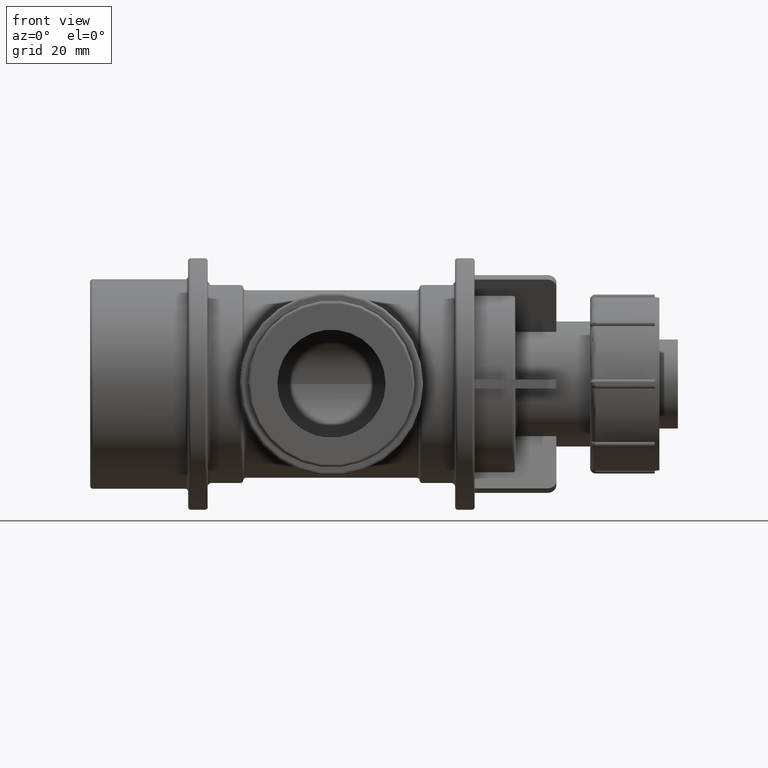
[diagram: clean part render]
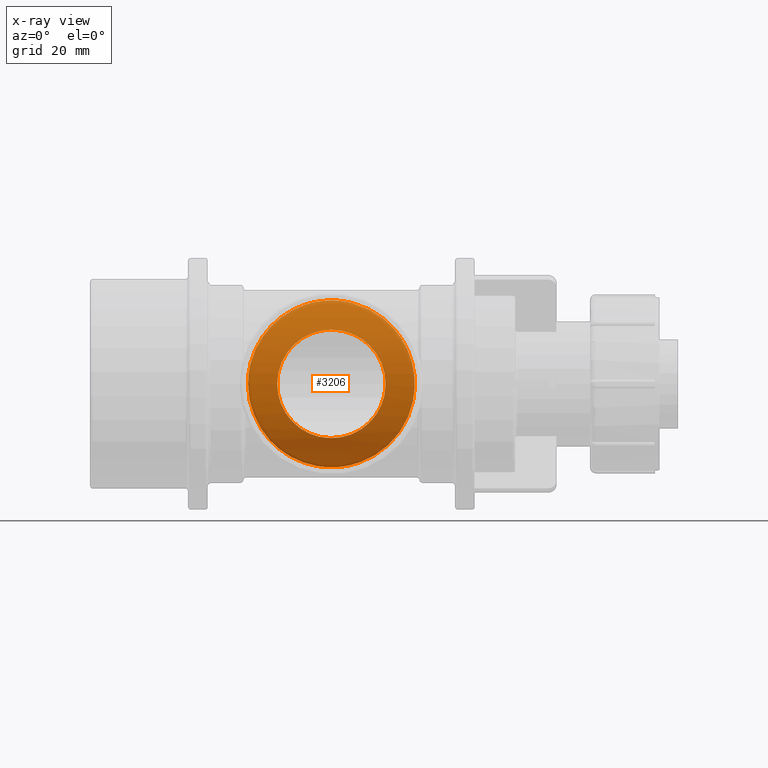
[diagram: x-ray — body ghosted, one internal face saturated and labeled with its STEP entity id]
A machine part, front view, then the same camera in x-ray: the body is ghosted and one INTERNAL B-rep face — a face not visible from any outside direction — is saturated and labeled: STEP entity #3206.
In plain terms, the highlighted cylindrical surface (partial cylindrical patch) has radius 33.75 mm, axis along (1, 0, 0).
Its self-contained STEP definition (entity closure, byte-faithful):
#787=FACE_BOUND('',#1261,.T.);
#999=FACE_OUTER_BOUND('',#1260,.T.);
#1260=EDGE_LOOP('',(#2914));
#1261=EDGE_LOOP('',(#2915));
#1332=B_SPLINE_CURVE_WITH_KNOTS('',3,(#6166,#6167,#6168,#6169,#6170,#6171,
#6172,#6173,#6174,#6175,#6176,#6177,#6178,#6179,#6180,#6181,#6182,#6183,
#6184,#6185,#6186,#6187,#6188,#6189,#6190,#6191,#6192,#6193,#6194,#6195,
#6196,#6197,#6198,#6199,#6200,#6201,#6202,#6203,#6204,#6205,#6206,#6207,
#6208,#6209,#6210,#6211,#6212,#6213,#6214,#6215,#6216,#6217,#6218,#6219,
#6220,#6221,#6222,#6223,#6224,#6225,#6226,#6227,#6228,#6229,#6230,#6231),
 .UNSPECIFIED.,.T.,.F.,(4,2,2,2,2,2,2,2,2,2,2,2,2,2,2,2,2,2,2,2,2,2,2,2,
2,2,2,2,2,2,2,2,4),(0.,0.640579936730798,1.2811598734616,1.92173981019239,
2.56231974692319,3.16324761037303,3.76417547382286,4.36510333727269,4.96603120072252,
5.56695906417236,6.16788692762219,6.76881479107202,7.36974265452186,8.01032259125265,
8.65090252798345,9.29148246471425,9.93206240144505,10.5726423381758,11.2132222749066,
11.8538022116374,12.4943821483682,13.0953100118181,13.6962378752679,14.2971657387177,
14.8980936021676,15.4990214656174,16.0999493290672,16.7008771925171,17.3018050559669,
17.9423849926977,18.5829649294285,19.2235448661593,19.8641248028901),
 .UNSPECIFIED.);
#1333=B_SPLINE_CURVE_WITH_KNOTS('',3,(#6233,#6234,#6235,#6236,#6237,#6238,
#6239,#6240,#6241,#6242,#6243,#6244,#6245,#6246,#6247,#6248,#6249,#6250,
#6251,#6252,#6253,#6254,#6255,#6256,#6257,#6258,#6259,#6260,#6261,#6262,
#6263,#6264,#6265,#6266,#6267,#6268,#6269,#6270,#6271,#6272,#6273,#6274,
#6275,#6276,#6277,#6278,#6279,#6280,#6281,#6282,#6283,#6284,#6285,#6286,
#6287,#6288,#6289,#6290,#6291,#6292,#6293,#6294,#6295,#6296,#6297,#6298),
 .UNSPECIFIED.,.T.,.F.,(4,2,2,2,2,2,2,2,2,2,2,2,2,2,2,2,2,2,2,2,2,2,2,2,
2,2,2,2,2,2,2,2,4),(0.,0.376239146417048,0.752478292834096,1.12871743925114,
1.50495658566819,1.87923749265059,2.253518399633,2.6277993066154,3.0020802135978,
3.37636112058021,3.75064202756261,4.12492293454501,4.49920384152742,4.87544298794447,
5.25168213436151,5.62792128077856,6.00416042719561,6.38039957361266,6.7566387200297,
7.13287786644675,7.5091170128638,7.8833979198462,8.25767882682861,8.63195973381101,
9.00624064079341,9.38052154777582,9.75480245475822,10.1290833617406,10.503364268723,
10.8796034151401,11.2558425615571,11.6320817079742,12.0083208543912),
 .UNSPECIFIED.);
#1617=VERTEX_POINT('',#6165);
#1618=VERTEX_POINT('',#6232);
#2053=EDGE_CURVE('',#1617,#1617,#1332,.T.);
#2054=EDGE_CURVE('',#1618,#1618,#1333,.T.);
#2914=ORIENTED_EDGE('',*,*,#2053,.F.);
#2915=ORIENTED_EDGE('',*,*,#2054,.F.);
#3000=CYLINDRICAL_SURFACE('',#3588,33.75);
#3206=ADVANCED_FACE('',(#999,#787),#3000,.F.);
#3588=AXIS2_PLACEMENT_3D('',#6164,#4516,#4517);
#4516=DIRECTION('center_axis',(1.,0.,0.));
#4517=DIRECTION('ref_axis',(0.,0.,-1.));
#6164=CARTESIAN_POINT('Origin',(-86.2,0.,0.));
#6165=CARTESIAN_POINT('',(0.,-15.8305164476716,29.807));
#6166=CARTESIAN_POINT('Ctrl Pts',(0.,-15.8305164476716,29.807));
#6167=CARTESIAN_POINT('Ctrl Pts',(-2.13526645576933,-15.8305164476716,29.807));
#6168=CARTESIAN_POINT('Ctrl Pts',(-4.16483095057509,-16.2686165327586,29.5812184236239));
#6169=CARTESIAN_POINT('Ctrl Pts',(-8.04904954733724,-17.6666141400583,28.768161343283));
#6170=CARTESIAN_POINT('Ctrl Pts',(-9.90577686330527,-18.6196249700865,28.1789660353876));
#6171=CARTESIAN_POINT('Ctrl Pts',(-13.4554947718354,-20.7271667210752,26.6669999386066));
#6172=CARTESIAN_POINT('Ctrl Pts',(-15.1451080895648,-21.8815935021023,25.7431961685034));
#6173=CARTESIAN_POINT('Ctrl Pts',(-18.2991278327776,-24.1720482695242,23.6056850707982));
#6174=CARTESIAN_POINT('Ctrl Pts',(-19.7623995500642,-25.3087858620734,22.3910641035907));
#6175=CARTESIAN_POINT('Ctrl Pts',(-22.3097065761918,-27.3455656258309,19.843757077463));
#6176=CARTESIAN_POINT('Ctrl Pts',(-23.499158413001,-28.3280452543822,18.4347051849735));
#6177=CARTESIAN_POINT('Ctrl Pts',(-25.644666126485,-30.1316544914066,15.310124132008));
#6178=CARTESIAN_POINT('Ctrl Pts',(-26.6006743887848,-30.9523361428187,13.5943037246267));
#6179=CARTESIAN_POINT('Ctrl Pts',(-28.1689965042344,-32.3101160206063,9.94528306593742));
#6180=CARTESIAN_POINT('Ctrl Pts',(-28.782727320211,-32.8483259686991,8.00761412933059));
#6181=CARTESIAN_POINT('Ctrl Pts',(-29.6019125829164,-33.5684428522686,4.03658859987213));
#6182=CARTESIAN_POINT('Ctrl Pts',(-29.807,-33.75,2.00309287816611));
#6183=CARTESIAN_POINT('Ctrl Pts',(-29.807,-33.75,-2.00309287816611));
#6184=CARTESIAN_POINT('Ctrl Pts',(-29.6019125829164,-33.5684428522686,-4.03658859987213));
#6185=CARTESIAN_POINT('Ctrl Pts',(-28.782727320211,-32.8483259686991,-8.00761412933059));
#6186=CARTESIAN_POINT('Ctrl Pts',(-28.1689965042344,-32.3101160206063,-9.94528306593742));
#6187=CARTESIAN_POINT('Ctrl Pts',(-26.6006743887848,-30.9523361428187,-13.5943037246267));
#6188=CARTESIAN_POINT('Ctrl Pts',(-25.644666126485,-30.1316544914066,-15.310124132008));
#6189=CARTESIAN_POINT('Ctrl Pts',(-23.499158413001,-28.3280452543822,-18.4347051849735));
#6190=CARTESIAN_POINT('Ctrl Pts',(-22.3097065761918,-27.3455656258309,-19.843757077463));
#6191=CARTESIAN_POINT('Ctrl Pts',(-19.7623995500642,-25.3087858620734,-22.3910641035907));
#6192=CARTESIAN_POINT('Ctrl Pts',(-18.2991278327776,-24.1720482695242,-23.6056850707982));
#6193=CARTESIAN_POINT('Ctrl Pts',(-15.1451080895648,-21.8815935021023,-25.7431961685034));
#6194=CARTESIAN_POINT('Ctrl Pts',(-13.4554947718354,-20.7271667210752,-26.6669999386066));
#6195=CARTESIAN_POINT('Ctrl Pts',(-9.90577686330528,-18.6196249700865,-28.1789660353876));
#6196=CARTESIAN_POINT('Ctrl Pts',(-8.04904954733725,-17.6666141400583,-28.7681613432829));
#6197=CARTESIAN_POINT('Ctrl Pts',(-4.1648309505751,-16.2686165327586,-29.5812184236239));
#6198=CARTESIAN_POINT('Ctrl Pts',(-2.13526645576933,-15.8305164476716,-29.807));
#6199=CARTESIAN_POINT('Ctrl Pts',(2.13526645576933,-15.8305164476716,-29.807));
#6200=CARTESIAN_POINT('Ctrl Pts',(4.1648309505751,-16.2686165327586,-29.5812184236239));
#6201=CARTESIAN_POINT('Ctrl Pts',(8.04904954733725,-17.6666141400583,-28.768161343283));
#6202=CARTESIAN_POINT('Ctrl Pts',(9.90577686330528,-18.6196249700865,-28.1789660353876));
#6203=CARTESIAN_POINT('Ctrl Pts',(13.4554947718354,-20.7271667210752,-26.6669999386066));
#6204=CARTESIAN_POINT('Ctrl Pts',(15.1451080895648,-21.8815935021023,-25.7431961685035));
#6205=CARTESIAN_POINT('Ctrl Pts',(18.2991278327776,-24.1720482695242,-23.6056850707982));
#6206=CARTESIAN_POINT('Ctrl Pts',(19.7623995500642,-25.3087858620734,-22.3910641035907));
#6207=CARTESIAN_POINT('Ctrl Pts',(22.3097065761918,-27.3455656258309,-19.8437570774631));
#6208=CARTESIAN_POINT('Ctrl Pts',(23.499158413001,-28.3280452543822,-18.4347051849735));
#6209=CARTESIAN_POINT('Ctrl Pts',(25.644666126485,-30.1316544914066,-15.310124132008));
#6210=CARTESIAN_POINT('Ctrl Pts',(26.6006743887848,-30.9523361428187,-13.5943037246267));
#6211=CARTESIAN_POINT('Ctrl Pts',(28.1689965042344,-32.3101160206063,-9.94528306593742));
#6212=CARTESIAN_POINT('Ctrl Pts',(28.782727320211,-32.8483259686991,-8.00761412933059));
#6213=CARTESIAN_POINT('Ctrl Pts',(29.6019125829164,-33.5684428522686,-4.03658859987213));
#6214=CARTESIAN_POINT('Ctrl Pts',(29.807,-33.75,-2.00309287816611));
#6215=CARTESIAN_POINT('Ctrl Pts',(29.807,-33.75,2.00309287816611));
#6216=CARTESIAN_POINT('Ctrl Pts',(29.6019125829165,-33.5684428522686,4.03658859987212));
#6217=CARTESIAN_POINT('Ctrl Pts',(28.782727320211,-32.8483259686991,8.00761412933059));
#6218=CARTESIAN_POINT('Ctrl Pts',(28.1689965042344,-32.3101160206063,9.94528306593742));
#6219=CARTESIAN_POINT('Ctrl Pts',(26.6006743887848,-30.9523361428187,13.5943037246267));
#6220=CARTESIAN_POINT('Ctrl Pts',(25.644666126485,-30.1316544914066,15.310124132008));
#6221=CARTESIAN_POINT('Ctrl Pts',(23.499158413001,-28.3280452543822,18.4347051849735));
#6222=CARTESIAN_POINT('Ctrl Pts',(22.3097065761918,-27.3455656258309,19.843757077463));
#6223=CARTESIAN_POINT('Ctrl Pts',(19.7623995500642,-25.3087858620734,22.3910641035907));
#6224=CARTESIAN_POINT('Ctrl Pts',(18.2991278327776,-24.1720482695242,23.6056850707982));
#6225=CARTESIAN_POINT('Ctrl Pts',(15.1451080895648,-21.8815935021023,25.7431961685035));
#6226=CARTESIAN_POINT('Ctrl Pts',(13.4554947718354,-20.7271667210752,26.6669999386066));
#6227=CARTESIAN_POINT('Ctrl Pts',(9.90577686330527,-18.6196249700865,28.1789660353876));
#6228=CARTESIAN_POINT('Ctrl Pts',(8.04904954733724,-17.6666141400583,28.768161343283));
#6229=CARTESIAN_POINT('Ctrl Pts',(4.1648309505751,-16.2686165327586,29.5812184236239));
#6230=CARTESIAN_POINT('Ctrl Pts',(2.13526645576934,-15.8305164476716,29.807));
#6231=CARTESIAN_POINT('Ctrl Pts',(9.99200722162641E-15,-15.8305164476716,
29.807));
#6232=CARTESIAN_POINT('',(0.,-27.6349292073908,19.37455));
#6233=CARTESIAN_POINT('Ctrl Pts',(0.,-27.6349292073908,19.37455));
#6234=CARTESIAN_POINT('Ctrl Pts',(1.25413048805683,-27.6349292073908,19.37455));
#6235=CARTESIAN_POINT('Ctrl Pts',(2.53712371284235,-27.7228745599205,19.2509322459232));
#6236=CARTESIAN_POINT('Ctrl Pts',(5.06553409193054,-28.0674261641881,18.7450194478234));
#6237=CARTESIAN_POINT('Ctrl Pts',(6.31110364836718,-28.3232800705425,18.3629740045551));
#6238=CARTESIAN_POINT('Ctrl Pts',(8.68408425807809,-28.9446246365714,17.3670846360636));
#6239=CARTESIAN_POINT('Ctrl Pts',(9.81392111425658,-29.3097424664818,16.7524360663838));
#6240=CARTESIAN_POINT('Ctrl Pts',(11.8987579401293,-30.0720534048858,15.3419920963244));
#6241=CARTESIAN_POINT('Ctrl Pts',(12.8538177346012,-30.4685960253217,14.5459336402744));
#6242=CARTESIAN_POINT('Ctrl Pts',(14.5415301004966,-31.2182122616233,12.8582212743791));
#6243=CARTESIAN_POINT('Ctrl Pts',(15.3368908133513,-31.5996309927976,11.9054119740955));
#6244=CARTESIAN_POINT('Ctrl Pts',(16.7489971766982,-32.3085958430332,9.81988532421553));
#6245=CARTESIAN_POINT('Ctrl Pts',(17.3658470367875,-32.6356576570233,8.68707392802752));
#6246=CARTESIAN_POINT('Ctrl Pts',(18.3644122708305,-33.1777807836144,6.30763582642913));
#6247=CARTESIAN_POINT('Ctrl Pts',(18.7469322317927,-33.3930151351585,5.05862894825699));
#6248=CARTESIAN_POINT('Ctrl Pts',(19.2520952094894,-33.6792096354073,2.52864093798603));
#6249=CARTESIAN_POINT('Ctrl Pts',(19.37455,-33.75,1.24760302327468));
#6250=CARTESIAN_POINT('Ctrl Pts',(19.37455,-33.75,-1.24760302327467));
#6251=CARTESIAN_POINT('Ctrl Pts',(19.2520952094894,-33.6792096354073,-2.52864093798602));
#6252=CARTESIAN_POINT('Ctrl Pts',(18.7469322317927,-33.3930151351585,-5.05862894825698));
#6253=CARTESIAN_POINT('Ctrl Pts',(18.3644122708305,-33.1777807836144,-6.30763582642912));
#6254=CARTESIAN_POINT('Ctrl Pts',(17.3658470367875,-32.6356576570233,-8.68707392802751));
#6255=CARTESIAN_POINT('Ctrl Pts',(16.7489971766982,-32.3085958430332,-9.81988532421552));
#6256=CARTESIAN_POINT('Ctrl Pts',(15.3368908133513,-31.5996309927976,-11.9054119740955));
#6257=CARTESIAN_POINT('Ctrl Pts',(14.5415301004966,-31.2182122616233,-12.8582212743791));
#6258=CARTESIAN_POINT('Ctrl Pts',(12.8538177346012,-30.4685960253217,-14.5459336402744));
#6259=CARTESIAN_POINT('Ctrl Pts',(11.8987579401293,-30.0720534048858,-15.3419920963244));
#6260=CARTESIAN_POINT('Ctrl Pts',(9.81392111425658,-29.3097424664818,-16.7524360663838));
#6261=CARTESIAN_POINT('Ctrl Pts',(8.6840842580781,-28.9446246365714,-17.3670846360636));
#6262=CARTESIAN_POINT('Ctrl Pts',(6.31110364836718,-28.3232800705425,-18.3629740045551));
#6263=CARTESIAN_POINT('Ctrl Pts',(5.06553409193054,-28.0674261641881,-18.7450194478234));
#6264=CARTESIAN_POINT('Ctrl Pts',(2.53712371284235,-27.7228745599205,-19.2509322459232));
#6265=CARTESIAN_POINT('Ctrl Pts',(1.25413048805682,-27.6349292073908,-19.37455));
#6266=CARTESIAN_POINT('Ctrl Pts',(-1.25413048805682,-27.6349292073908,-19.37455));
#6267=CARTESIAN_POINT('Ctrl Pts',(-2.53712371284235,-27.7228745599205,-19.2509322459232));
#6268=CARTESIAN_POINT('Ctrl Pts',(-5.06553409193054,-28.0674261641881,-18.7450194478234));
#6269=CARTESIAN_POINT('Ctrl Pts',(-6.31110364836717,-28.3232800705425,-18.3629740045551));
#6270=CARTESIAN_POINT('Ctrl Pts',(-8.68408425807808,-28.9446246365714,-17.3670846360636));
#6271=CARTESIAN_POINT('Ctrl Pts',(-9.81392111425656,-29.3097424664818,-16.7524360663838));
#6272=CARTESIAN_POINT('Ctrl Pts',(-11.8987579401292,-30.0720534048858,-15.3419920963244));
#6273=CARTESIAN_POINT('Ctrl Pts',(-12.8538177346012,-30.4685960253217,-14.5459336402744));
#6274=CARTESIAN_POINT('Ctrl Pts',(-14.5415301004966,-31.2182122616233,-12.8582212743791));
#6275=CARTESIAN_POINT('Ctrl Pts',(-15.3368908133513,-31.5996309927976,-11.9054119740955));
#6276=CARTESIAN_POINT('Ctrl Pts',(-16.7489971766982,-32.3085958430332,-9.81988532421552));
#6277=CARTESIAN_POINT('Ctrl Pts',(-17.3658470367875,-32.6356576570233,-8.68707392802752));
#6278=CARTESIAN_POINT('Ctrl Pts',(-18.3644122708305,-33.1777807836144,-6.30763582642914));
#6279=CARTESIAN_POINT('Ctrl Pts',(-18.7469322317927,-33.3930151351585,-5.058628948257));
#6280=CARTESIAN_POINT('Ctrl Pts',(-19.2520952094894,-33.6792096354073,-2.52864093798603));
#6281=CARTESIAN_POINT('Ctrl Pts',(-19.37455,-33.75,-1.24760302327469));
#6282=CARTESIAN_POINT('Ctrl Pts',(-19.37455,-33.75,1.24760302327468));
#6283=CARTESIAN_POINT('Ctrl Pts',(-19.2520952094894,-33.6792096354073,2.52864093798602));
#6284=CARTESIAN_POINT('Ctrl Pts',(-18.7469322317927,-33.3930151351585,5.05862894825699));
#6285=CARTESIAN_POINT('Ctrl Pts',(-18.3644122708305,-33.1777807836144,6.30763582642913));
#6286=CARTESIAN_POINT('Ctrl Pts',(-17.3658470367875,-32.6356576570233,8.68707392802752));
#6287=CARTESIAN_POINT('Ctrl Pts',(-16.7489971766982,-32.3085958430332,9.81988532421552));
#6288=CARTESIAN_POINT('Ctrl Pts',(-15.3368908133513,-31.5996309927976,11.9054119740955));
#6289=CARTESIAN_POINT('Ctrl Pts',(-14.5415301004966,-31.2182122616233,12.8582212743791));
#6290=CARTESIAN_POINT('Ctrl Pts',(-12.8538177346012,-30.4685960253217,14.5459336402744));
#6291=CARTESIAN_POINT('Ctrl Pts',(-11.8987579401292,-30.0720534048858,15.3419920963244));
#6292=CARTESIAN_POINT('Ctrl Pts',(-9.81392111425657,-29.3097424664818,16.7524360663838));
#6293=CARTESIAN_POINT('Ctrl Pts',(-8.68408425807809,-28.9446246365715,17.3670846360636));
#6294=CARTESIAN_POINT('Ctrl Pts',(-6.31110364836718,-28.3232800705425,18.3629740045551));
#6295=CARTESIAN_POINT('Ctrl Pts',(-5.06553409193055,-28.0674261641881,18.7450194478234));
#6296=CARTESIAN_POINT('Ctrl Pts',(-2.53712371284235,-27.7228745599206,19.2509322459232));
#6297=CARTESIAN_POINT('Ctrl Pts',(-1.25413048805682,-27.6349292073908,19.37455));
#6298=CARTESIAN_POINT('Ctrl Pts',(-5.55111512312578E-16,-27.6349292073908,
19.37455));